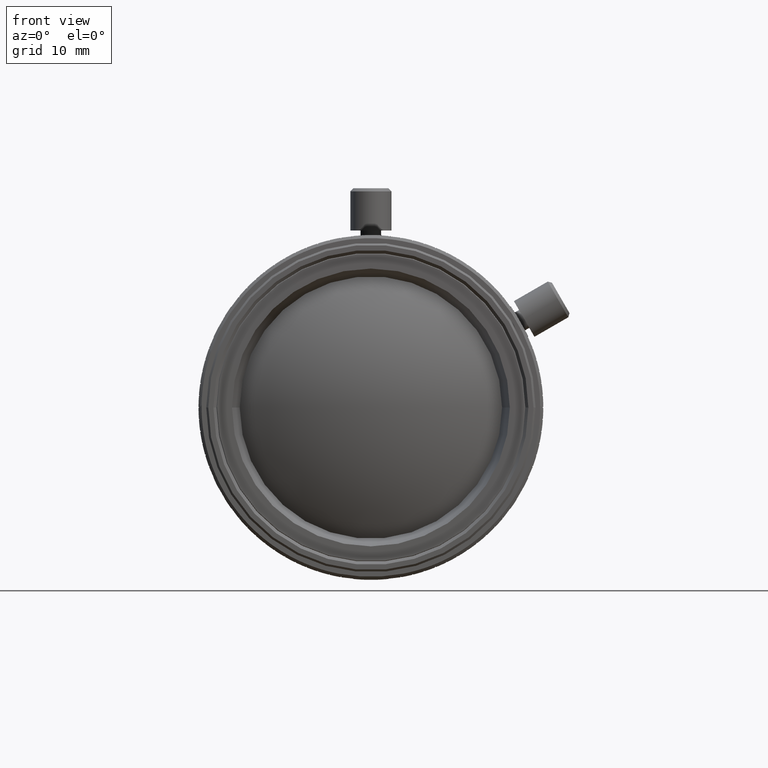
[diagram: clean part render]
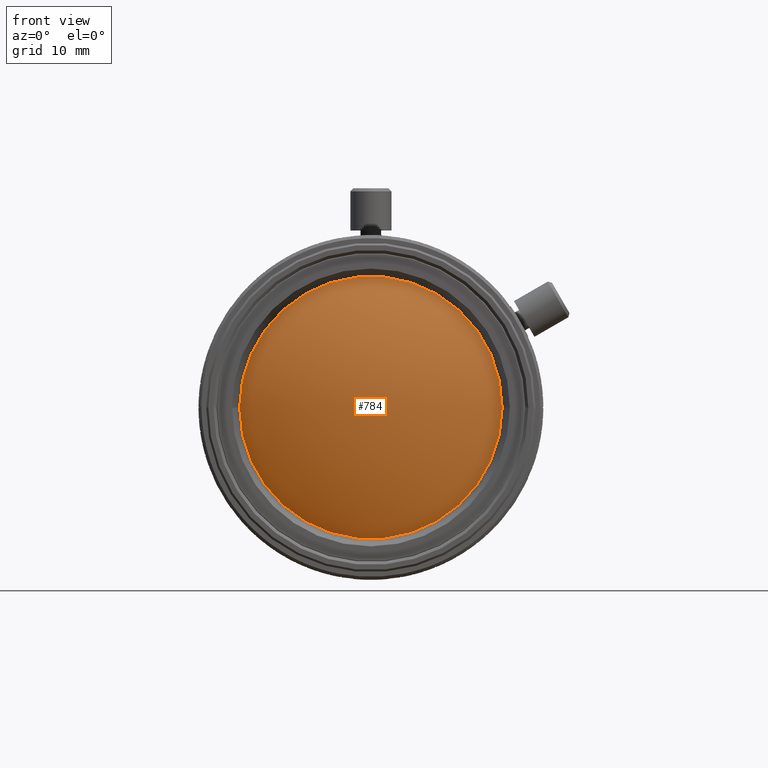
[diagram: same view with one face highlighted and labeled with its STEP entity id]
A machine part, front view. The second image highlights one B-rep face of the part: STEP entity #784.
In plain terms, the highlighted spherical surface has radius 23.536 mm.
Its self-contained STEP definition (entity closure, byte-faithful):
#784=ADVANCED_FACE('0:16787',(#2607),#2608,.T.);
#2607=FACE_OUTER_BOUND('',#4938,.T.);
#2608=SPHERICAL_SURFACE('',#4939,0.023536);
#4938=EDGE_LOOP('',(#10818,#10819,#10820));
#4939=AXIS2_PLACEMENT_3D('',#10821,#10822,#10823);
#10818=ORIENTED_EDGE('',*,*,#15874,.T.);
#10819=ORIENTED_EDGE('',*,*,#16063,.T.);
#10820=ORIENTED_EDGE('',*,*,#15875,.T.);
#10821=CARTESIAN_POINT('',(-1.09014457617268E-18,-0.03533,-1.73472347597681E-18));
#10822=DIRECTION('',(1.0,-6.12303176911189E-17,0.0));
#10823=DIRECTION('',(0.0,0.0,-1.0));
#15874=EDGE_CURVE('0:18425',#19259,#19256,#19260,.T.);
#15875=EDGE_CURVE('0:18425',#19261,#19259,#19262,.T.);
#16063=EDGE_CURVE('0:18425',#19256,#19261,#19561,.T.);
#19256=VERTEX_POINT('',#23950);
#19259=VERTEX_POINT('NONE',#23954);
#19260=CIRCLE('',#23955,0.0128);
#19261=VERTEX_POINT('',#23956);
#19262=CIRCLE('',#23957,0.0128);
#19561=CIRCLE('',#24392,0.0128);
#23950=CARTESIAN_POINT('',(-0.0128,-0.0550810327831231,-4.66485490107804E-17));
#23954=CARTESIAN_POINT('',(-7.31958685302409E-19,-0.0550810327831231,0.0127999999999999));
#23955=AXIS2_PLACEMENT_3D('',#29535,#29536,#29537);
#23956=CARTESIAN_POINT('',(0.0128,-0.0550810327831231,-4.97836448165976E-17));
#23957=AXIS2_PLACEMENT_3D('',#29538,#29539,#29540);
#24392=AXIS2_PLACEMENT_3D('',#29950,#29951,#29952);
#29535=CARTESIAN_POINT('',(-2.29950658821101E-18,-0.0550810327831231,-4.8216096913689E-17));
#29536=DIRECTION('',(0.0,-1.0,0.0));
#29537=DIRECTION('',(1.0,0.0,0.0));
#29538=CARTESIAN_POINT('',(-2.29950658821101E-18,-0.0550810327831231,-4.8216096913689E-17));
#29539=DIRECTION('',(0.0,-1.0,0.0));
#29540=DIRECTION('',(1.0,0.0,0.0));
#29950=CARTESIAN_POINT('',(-2.29950658821101E-18,-0.0550810327831231,-4.8216096913689E-17));
#29951=DIRECTION('',(0.0,-1.0,0.0));
#29952=DIRECTION('',(1.0,0.0,0.0));